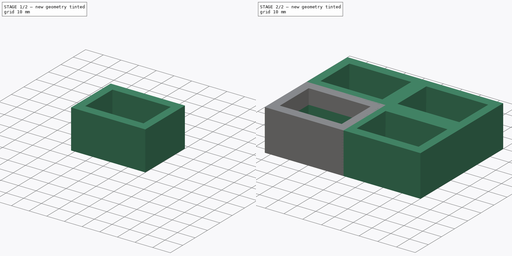
[diagram: build sequence overview — one tinted view per stage of 2, left to right]
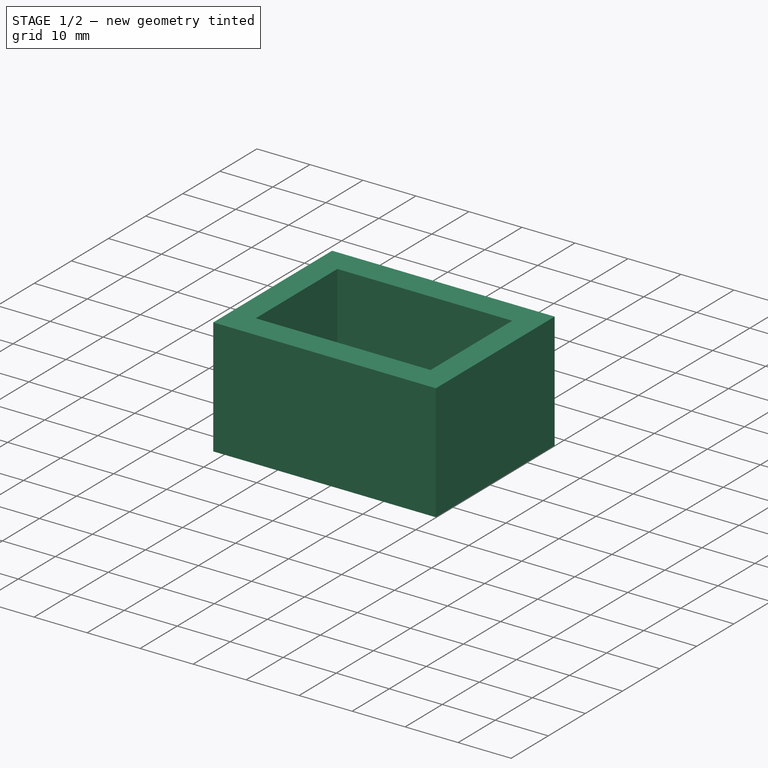
[diagram: stage 1 of 2 — iso view after this stage's code; geometry added in this stage tinted green]
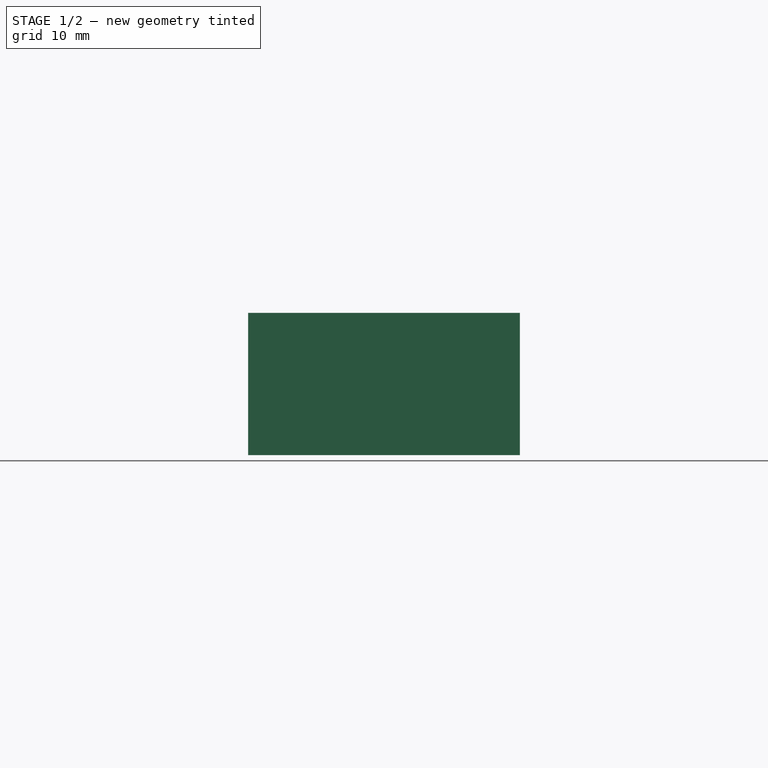
[diagram: stage 1 of 2 — front view after this stage's code; geometry added in this stage tinted green]
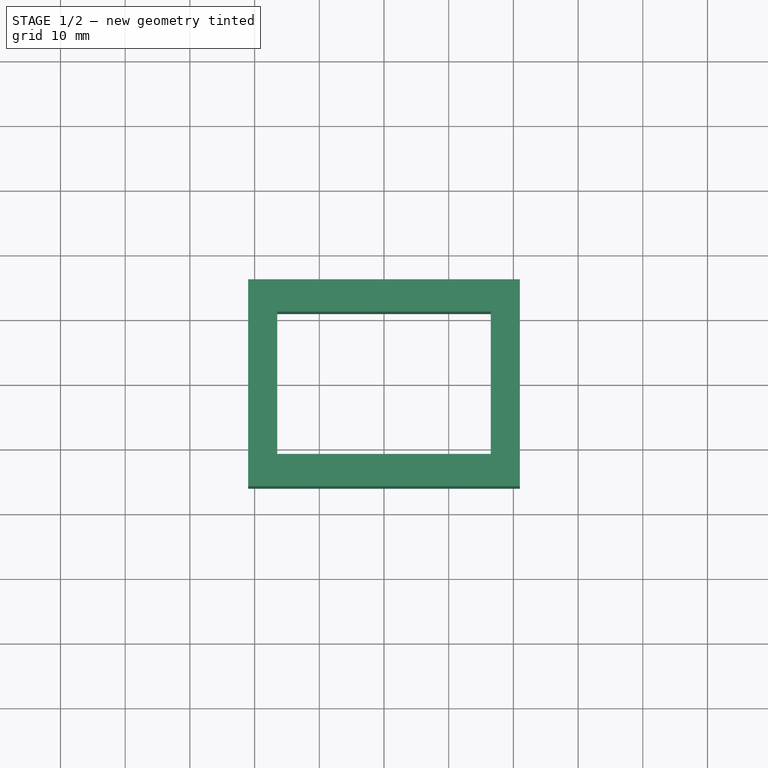
[diagram: stage 1 of 2 — top view after this stage's code; geometry added in this stage tinted green]
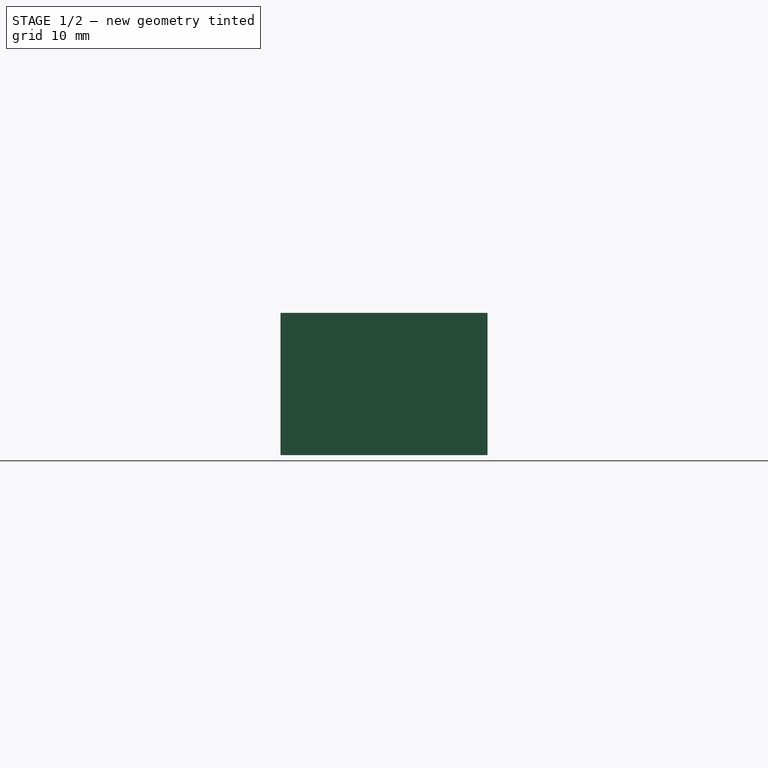
[diagram: stage 1 of 2 — right view after this stage's code; geometry added in this stage tinted green]
FCSTD DOCUMENT  (FreeCAD 0.18R16131 (Git))
Label: Halter_50555
License: All rights reserved
LicenseURL: http://en.wikipedia.org/wiki/All_rights_reserved
objects: Sketcher::SketchObject×3, PartDesign::Pocket×2, PartDesign::Pad×1, PartDesign::Body×1, Part::FeaturePython×1
note: 11 computed .brp shape members not serialized (recipe doc carries the construction recipe); baked Part::Feature solids carry a one-line shape summary decoded from their .brp

FEATURE [Sketcher::SketchObject] Sketch001  label="Kopf"
  MapMode = 5
  Support = -> [XY_Plane001]
  sketch-geometry (4):
    g0: LineSegment StartX=-18 StartY=13 StartZ=0 EndX=18 EndY=13 EndZ=0
    g1: LineSegment StartX=18 StartY=13 StartZ=0 EndX=18 EndY=-13 EndZ=0
    g2: LineSegment StartX=18 StartY=-13 StartZ=0 EndX=-18 EndY=-13 EndZ=0
    g3: LineSegment StartX=-18 StartY=-13 StartZ=0 EndX=-18 EndY=13 EndZ=0
  constraints (10):
    c: Coincident(g0,g3)
    c: Coincident(g2,g3)
    c: Coincident(g0,g1)
    c: Coincident(g1,g2)
    c: Horizontal(g2)
    c: Vertical(g1)
    c: DistanceX(g0,g0) = 36
    c: DistanceY(g1,g1) = 26
    c: Symmetric(g0,g0,g-2)
    c: Symmetric(g2,g0,g-1)
FEATURE [Sketcher::SketchObject] Sketch002  label="unten"
  MapMode = 5
  Support = -> [XY_Plane001]
  sketch-geometry (4):
    g0: LineSegment StartX=-16.5 StartY=11 StartZ=0 EndX=16.5 EndY=11 EndZ=0
    g1: LineSegment StartX=16.5 StartY=11 StartZ=0 EndX=16.5 EndY=-11 EndZ=0
    g2: LineSegment StartX=16.5 StartY=-11 StartZ=0 EndX=-16.5 EndY=-11 EndZ=0
    g3: LineSegment StartX=-16.5 StartY=-11 StartZ=0 EndX=-16.5 EndY=11 EndZ=0
  constraints (10):
    c: Vertical(g3)
    c: Coincident(g0,g3)
    c: Coincident(g2,g3)
    c: Coincident(g0,g1)
    c: Coincident(g1,g2)
    c: Horizontal(g2)
    c: DistanceX(g0,g0) = 33
    c: DistanceY(g1,g1) = 22
    c: Symmetric(g0,g0,g-2)
    c: Symmetric(g1,g0,g-1)
FEATURE [Sketcher::SketchObject] Sketch
  MapMode = 5
  Support = -> [XY_Plane001]
  sketch-geometry (4):
    g0: LineSegment StartX=-21 StartY=16 StartZ=0 EndX=21 EndY=16 EndZ=0
    g1: LineSegment StartX=21 StartY=16 StartZ=0 EndX=21 EndY=-16 EndZ=0
    g2: LineSegment StartX=21 StartY=-16 StartZ=0 EndX=-21 EndY=-16 EndZ=0
    g3: LineSegment StartX=-21 StartY=-16 StartZ=0 EndX=-21 EndY=16 EndZ=0
  constraints (8):
    c: Coincident(g0,g1)
    c: Coincident(g1,g2)
    c: Coincident(g2,g3)
    c: Coincident(g3,g0)
    c: Horizontal(g2)
    c: Vertical(g3)
    c: Symmetric(g0,g0,g-2)
    c: Symmetric(g1,g0,g-1)
FEATURE [PartDesign::Pad] Pad
  Length = 22
  Length2 = 83
  Profile = -> Sketch
  Type = 0
FEATURE [PartDesign::Pocket] Pocket
  BaseFeature = -> Pad
  Length = 5
  Length2 = 100
  Profile = -> Sketch002
  Reversed = true
  Type = 1
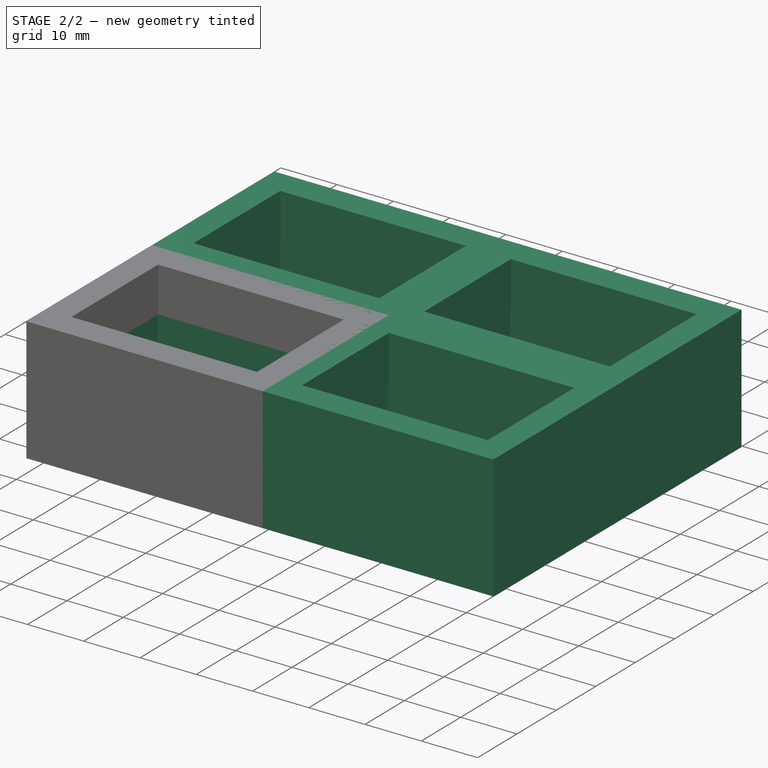
[diagram: stage 2 of 2 — iso view after this stage's code; geometry added in this stage tinted green]
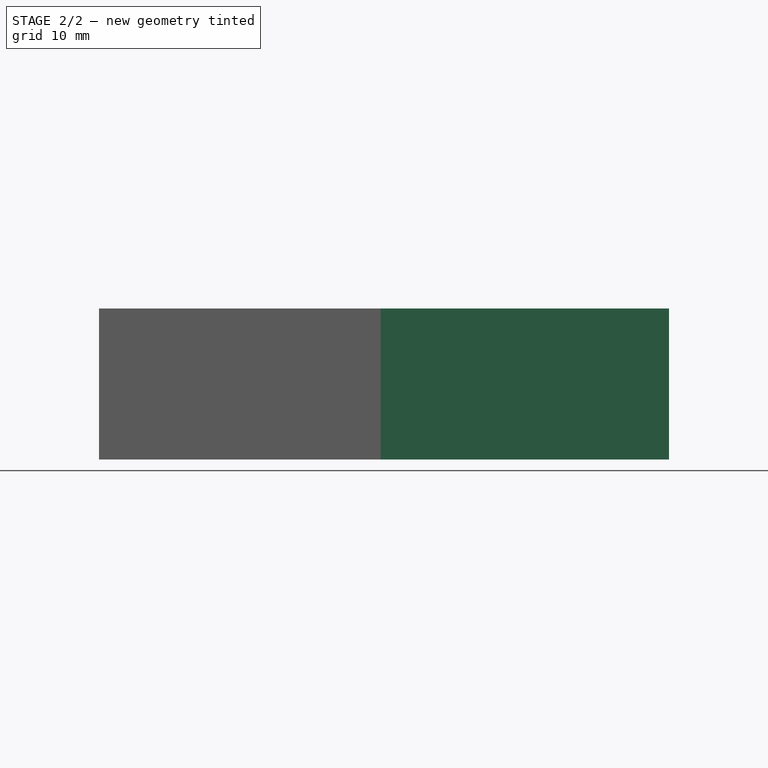
[diagram: stage 2 of 2 — front view after this stage's code; geometry added in this stage tinted green]
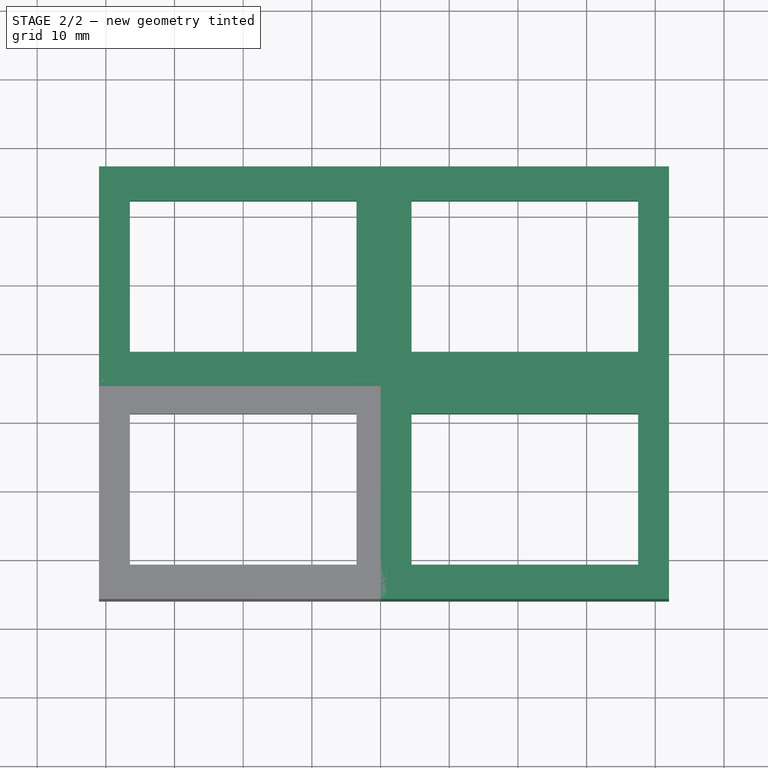
[diagram: stage 2 of 2 — top view after this stage's code; geometry added in this stage tinted green]
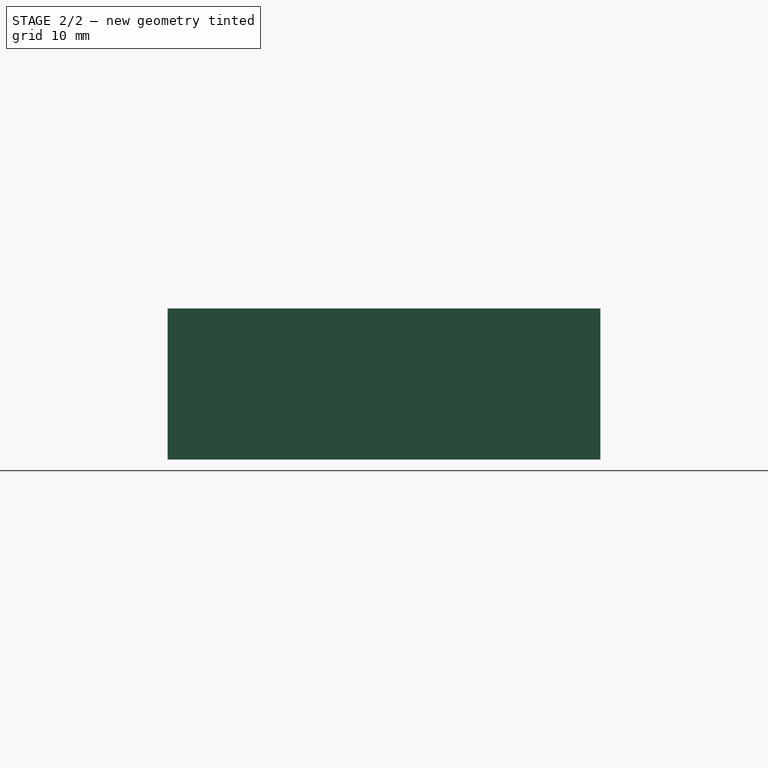
[diagram: stage 2 of 2 — right view after this stage's code; geometry added in this stage tinted green]
FEATURE [PartDesign::Pocket] Pocket001
  BaseFeature = -> Pocket
  Length = 14
  Length2 = 100
  Profile = -> Sketch001
  Reversed = true
  Type = 0
FEATURE [PartDesign::Body] Body001  label="Stoepsel"
  Group = -> [Sketch001,Sketch002,Sketch,Pad,Pocket,Pocket001]
  Origin = -> Origin001
  Tip = -> Pocket001
FEATURE [Part::FeaturePython] Array  # Draft array (typed FeaturePython)
  Angle = 360
  ArrayType = 0
  Axis = (0,0,1)
  Base = -> Body001
  Center = (0,0,0)
  Fuse = false
  IntervalAxis = (0,0,0)
  IntervalX = (41,0,0)
  IntervalY = (0,31,0)
  IntervalZ = (0,0,1)
  NumberPolar = 1
  NumberX = 2
  NumberY = 2
  NumberZ = 1
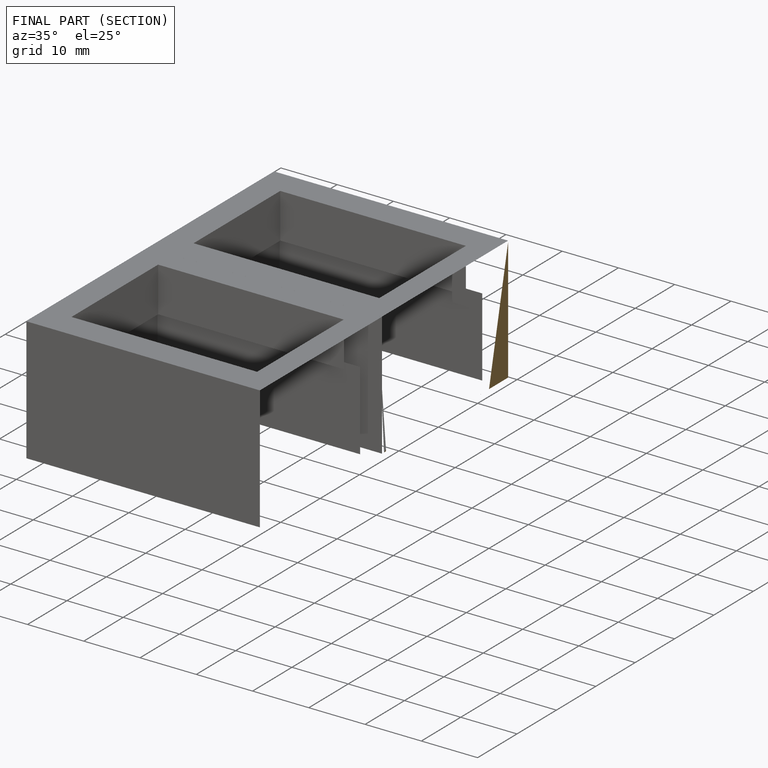
[diagram: finished part — half-section view (interior)]
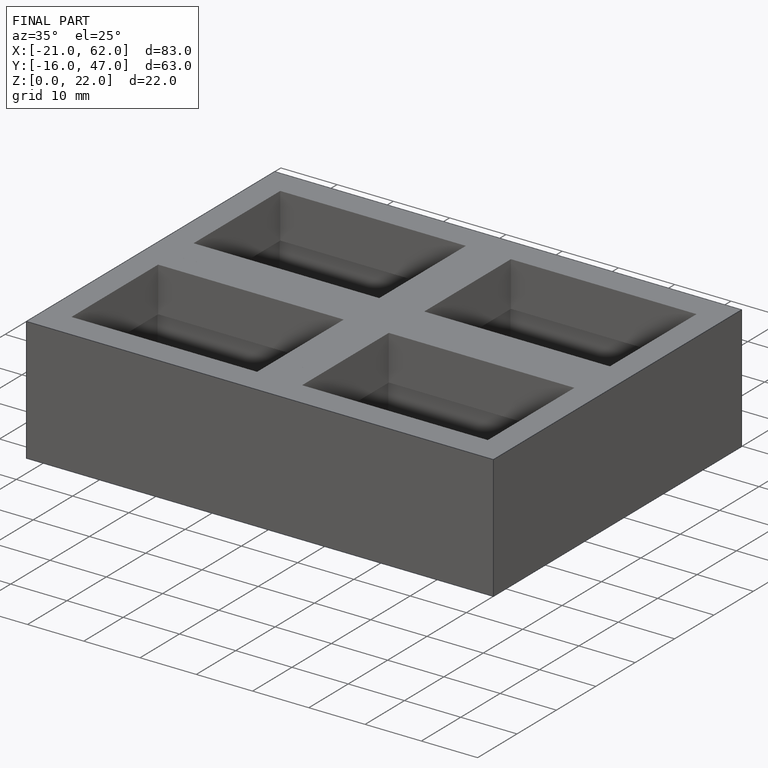
[diagram: finished part — iso view with bounding-box wireframe]
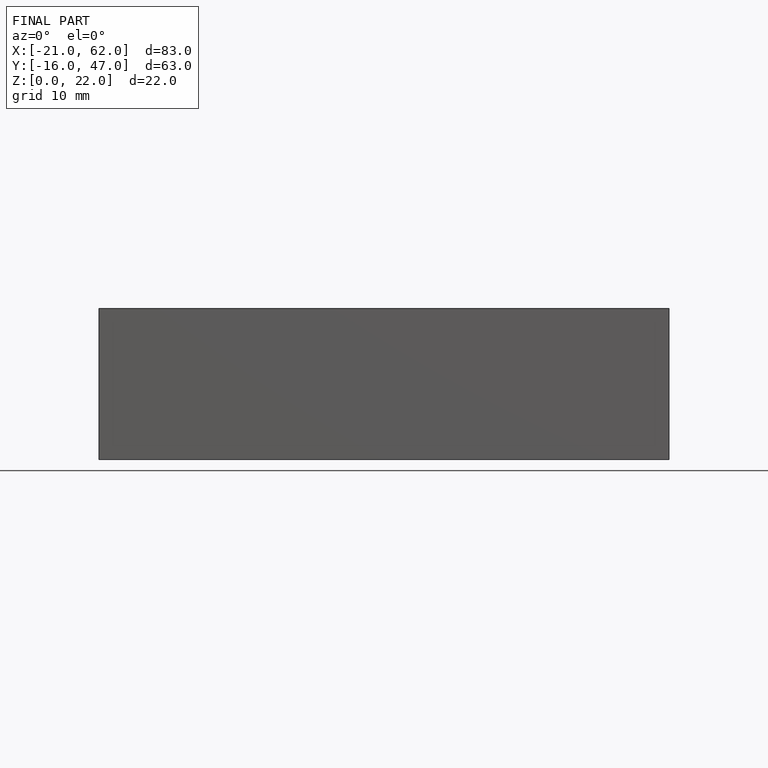
[diagram: finished part — front view with bounding-box wireframe]
